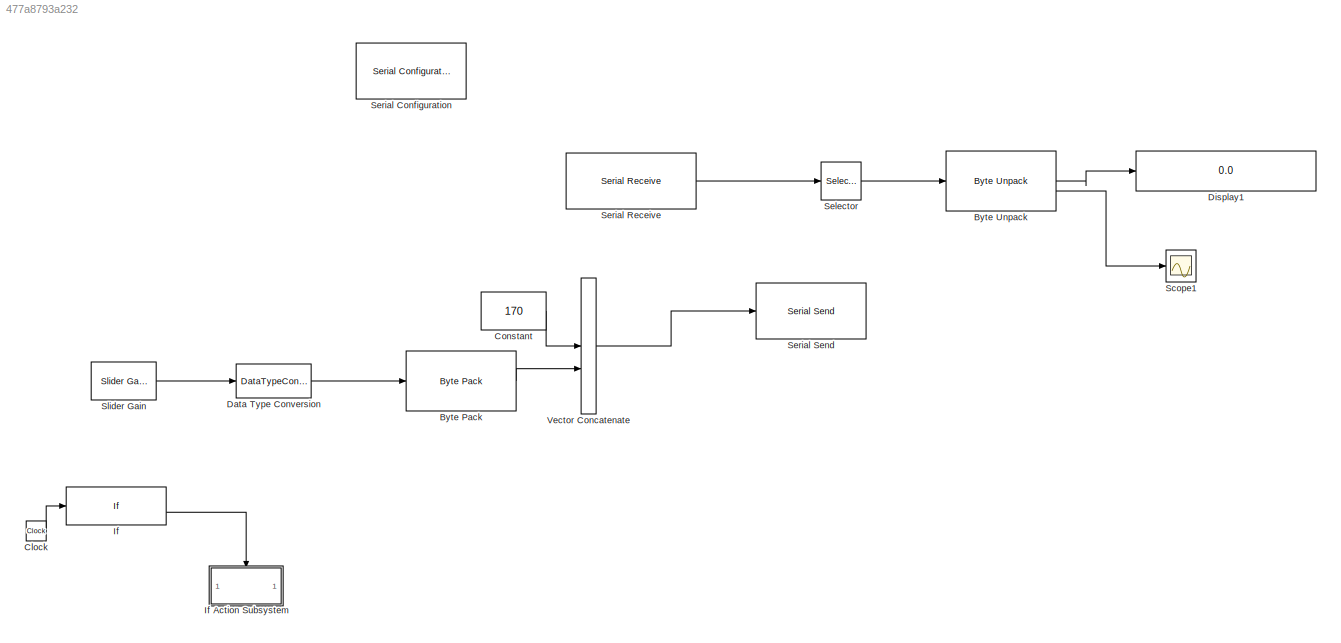
MODEL slx_477a8793a232
KIND model
CONFIG AbsTol = auto
CONFIG EnableMultiTasking = off
CONFIG FixedStep = 0.01
CONFIG MaxStep = auto
CONFIG MinStep = auto
CONFIG RelTol = 1e-3
CONFIG SampleTimeConstraint = Unconstrained
CONFIG SolverName = FixedStepAuto
CONFIG StartTime = 0.0
CONFIG StopTime = inf
BLOCK [Reference] Byte Pack  REF=etargetslib/Byte Pack
  LibrarySourceBlock = embeddedtargetslib/Host Communication/Byte Pack
  SourceBlock = etargetslib/Byte Pack
  SourceType = Byte pack
BLOCK [Reference] Byte Unpack  REF=etargetslib/Byte Unpack
  LibrarySourceBlock = embeddedtargetslib/Host Communication/Byte Unpack
  SourceBlock = etargetslib/Byte Unpack
  SourceType = Byte Unpack
BLOCK [Clock] Clock
BLOCK [Constant] Constant
  OutDataTypeStr = uint8
  Value = 170
BLOCK [DataTypeConversion] Data Type Conversion
  OutDataTypeStr = single
  RndMeth = Floor
  SaturateOnIntegerOverflow = off
BLOCK [Display] Display1
  Decimation = 1
  Format = long
BLOCK [If] If
  IfExpression = u1 < 1
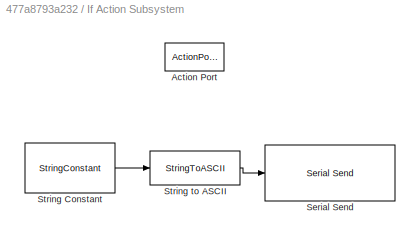
BLOCK [SubSystem] If Action Subsystem
  TreatAsAtomicUnit = on
BLOCK [ActionPort] If Action Subsystem/Action Port
  ActionPortLabel = else
BLOCK [Reference] If Action Subsystem/Serial Send  REF=instrumentseriallib/Serial Send
  Priority = 1
  SourceBlock = instrumentseriallib/Serial Send
  SourceType = system.SerialSend
BLOCK [StringConstant] If Action Subsystem/String Constant
  String = "1111,5556"
BLOCK [StringToASCII] If Action Subsystem/String to ASCII
BLOCK [Scope] Scope1
  ActiveDisplayYMaximum = 1.4635628972057686E+9
  ActiveDisplayYMinimum = -1.9345327032385473E+9
  DataLoggingVariableName = ScopeData1
  Floating = off
  GraphicalSettings = {"Style":{"BackgroundColor":[0.12941176470588237,0.12941176470588237,0.12941176470588237],"AxesColor":[0.07058823529411765,0.07058823529411765,0.07058823529411765],"LabelsColor":[0.8509803921568627,0.8509803921568627,0.8509803921568627],"PreserveColors":false,"Visible":[true],"LineStyle":["-"],"LineWidth":[1.5],"BarWidth":[0.9],"LineColor":["auto"],"LineFaceAlpha":[1],"LineEdgeAlpha":[1],"Marker":...<+1995ch>
  MultipleDisplayCache = [{"MaxYLimMag":1.731167819E+9,"MaxYLimReal":1.4635628972057686E+9,"MinYLimMag":0,"MinYLimReal":-1.9345327032385473E+9,"PlotAsMagnitudePhase":false,"ShowGrid":true,"ShowLegend":false,"Title":"%<SignalLabel>","YLabel":""}]
  NumInputPorts = 1
  ScopeFrameLocation = window
  WasSavedAsWebScope = on
  WindowPosition = [1.000000,38.000000,1920.000000,1011.000000,]
BLOCK [Selector] Selector
  IndexOptions = Index vector (dialog)
  Indices = 2:9
  InputPortWidth = 9
  OutputSizes = 1
BLOCK [Reference] Serial Configuration  REF=instrumentseriallib/Serial Configuration
  LibrarySourceBlock = embeddedtargetslib/Host Communication/Serial Configuration
  Priority = -200000
  SourceBlock = instrumentseriallib/Serial Configuration
  SourceType = system.SerialConfiguration
BLOCK [Reference] Serial Receive  REF=instrumentseriallib/Serial Receive
  Priority = 1
  SourceBlock = instrumentseriallib/Serial Receive
  SourceType = system.SerialReceive
BLOCK [Reference] Serial Send  REF=instrumentseriallib/Serial Send
  LibrarySourceBlock = embeddedtargetslib/Host Communication/Serial Send
  Priority = 1
  SourceBlock = instrumentseriallib/Serial Send
  SourceType = system.SerialSend
BLOCK [Reference] Slider Gain  REF=simulink/Math
Operations/Slider
Gain
  SourceBlock = simulink/Math\nOperations/Slider\nGain
  SourceType = Slider Gain
BLOCK [Concatenate] Vector Concatenate
LINE Byte Pack:1 -> Vector Concatenate:2
LINE Byte Unpack:1 -> Display1:1
LINE Byte Unpack:2 -> Scope1:1
LINE Clock:1 -> If:1
LINE Constant:1 -> Vector Concatenate:1
LINE Data Type Conversion:1 -> Byte Pack:1
LINE If Action Subsystem/String Constant:1 -> If Action Subsystem/String to ASCII:1
LINE If Action Subsystem/String to ASCII:1 -> If Action Subsystem/Serial Send:1
LINE If:2 -> If Action Subsystem:ifaction
LINE Selector:1 -> Byte Unpack:1
LINE Serial Receive:1 -> Selector:1
LINE Slider Gain:1 -> Data Type Conversion:1
LINE Vector Concatenate:1 -> Serial Send:1
